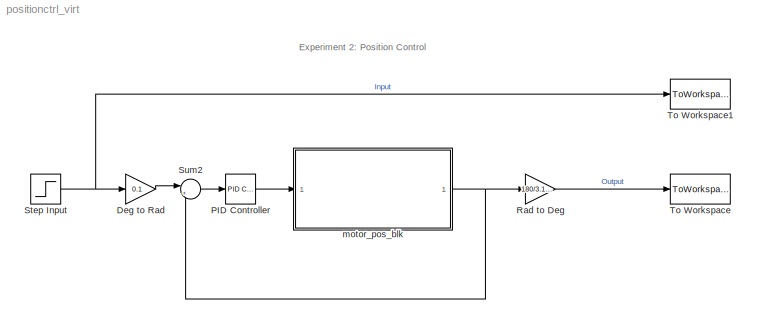
MODEL positionctrl_virt
KIND model
CONFIG StopFcn = save_system(vars.simfilename);
BLOCK [Gain] Deg to Rad
  Gain = 0.1
BLOCK [Reference] PID Controller  REF=simulink_extras/Additional\nLinear/PID Controller
  D = 0.1
  FunctionWithSeparateData = off
  I = 0
  P = 1
  Ports = [1, 1]
  RTWMemSecDataConstants = Inherit from model
  RTWMemSecDataInternal = Inherit from model
  RTWMemSecDataParameters = Inherit from model
  RTWMemSecFuncExecute = Inherit from model
  RTWMemSecFuncInitTerm = Inherit from model
  ShowPortLabels = FromPortIcon
  SourceBlock = simulink_extras/Additional\nLinear/PID Controller
  SourceType = PID Controller
  SystemSampleTime = -1
BLOCK [Gain] Rad to Deg
  Gain = 180/3.14159
BLOCK [Step] Step Input
  SampleTime = 0
  Time = 0
BLOCK [Sum] Sum2
  CollapseMode = All dimensions
  IconShape = round
  Inputs = |+-
  Ports = [2, 1]
BLOCK [ToWorkspace] To Workspace
  MaxDataPoints = inf
  SampleTime = -1
  SaveFormat = Structure With Time
  VariableName = output
BLOCK [ToWorkspace] To Workspace1
  MaxDataPoints = inf
  SampleTime = -1
  SaveFormat = Structure With Time
  VariableName = input
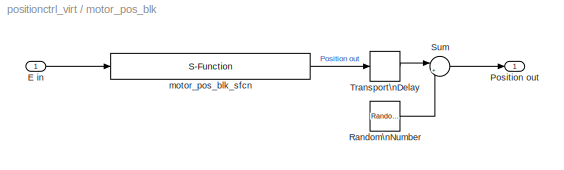
BLOCK [SubSystem] motor_pos_blk
  FunctionWithSeparateData = off
  MaskDescription = Real-Time Workshop generated S-function.
  MaskDisplay = disp('DC Motor (Position Control)')\n
  MaskHelp = web(['file://',docroot,'/toolbox/rtw/rtwsfcn.html']);
  MaskHideContents = off
  MaskIconFrame = on
  MaskIconOpaque = on
  MaskIconRotate = none
  MaskIconUnits = autoscale
  MinAlgLoopOccurrences = off
  Ports = [1, 1]
  RTWSystemCode = Auto
BLOCK [Inport] motor_pos_blk/E in
  IconDisplay = Port number
BLOCK [Outport] motor_pos_blk/Position out
  BusOutputAsStruct = off
  IconDisplay = Port number
BLOCK [RandomNumber] motor_pos_blk/Random\nNumber
  SampleTime = 0.005
  Variance = 0.000005
BLOCK [Sum] motor_pos_blk/Sum
  CollapseMode = All dimensions
  IconShape = round
  Inputs = |++
  Ports = [2, 1]
BLOCK [TransportDelay] motor_pos_blk/Transport\nDelay
  BufferSize = 10000
  DelayTime = 0.001
BLOCK [S-Function] motor_pos_blk/motor_pos_blk_sfcn
  CopyFcn = set_param(gcb,'linkstatus','none')
  FunctionName = motor_pos_sf
  MaskCallbackString = |
  MaskDescription = Real-Time Workshop generated S-function.
  MaskDisplay = \nport_label('input',1,'E in');\nport_label('output',1,'Position out');
  MaskEnableString = on,on
  MaskHelp = web(['file://',docroot,'/toolbox/rtw/rtwsfcn.html']);
  MaskIconFrame = on
  MaskIconOpaque = on
  MaskIconRotate = none
  MaskIconUnits = autoscale
  MaskInitialization = displist = '';\nif ~strcmp(get_param(gcb, 'FunctionName'), rtw_sf_name);\n  set_param(gcb, 'FunctionName', rtw_sf_name);\nend\nif  showVar & exist('rtwsfunc') == 2\n  tmplist = rtwsfunc(rtw_sf_name,gcb);\n  tmplist = ['\\nList of Modules:\\n', tmplist];\nelseif showVar\n  tmplist = '\\nList of Modules:\\nRTW not licensed\\n';\nend\nif showVar\n  displist = tmplist;\nend
  MaskPromptString = Generated S-function name (model_sf):|Show module list
  MaskStyleString = edit,checkbox
  MaskTabNameString = ,
  MaskToolTipString = on,on
  MaskTunableValueString = on,on
  MaskValueString = motor_pos_sf|off
  MaskVarAliasString = ,
  MaskVariables = rtw_sf_name=&1;showVar=@2;
  MaskVisibilityString = on,on
  Ports = [1, 1]
ANNOTATION (root): Experiment 2: Position Control
LINE Deg to Rad:1 -> Sum2:1
LINE PID Controller:1 -> motor_pos_blk:1
LINE Rad to Deg:1 -> To Workspace:1
NET Step Input:1 -> Deg to Rad:1, To Workspace1:1
LINE Sum2:1 -> PID Controller:1
LINE motor_pos_blk/E in:1 -> motor_pos_blk/motor_pos_blk_sfcn:1
LINE motor_pos_blk/Random\nNumber:1 -> motor_pos_blk/Sum:2
LINE motor_pos_blk/Sum:1 -> motor_pos_blk/Position out:1
LINE motor_pos_blk/Transport\nDelay:1 -> motor_pos_blk/Sum:1
LINE motor_pos_blk/motor_pos_blk_sfcn:1 -> motor_pos_blk/Transport\nDelay:1
NET motor_pos_blk:1 -> Rad to Deg:1, Sum2:2
note: NET lines group one-source signal fan-out (src -> all destinations, sorted); 1:1 wires keep LINE
